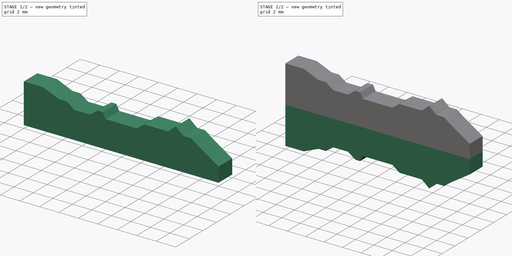
[diagram: build sequence overview — one tinted view per stage of 2, left to right]
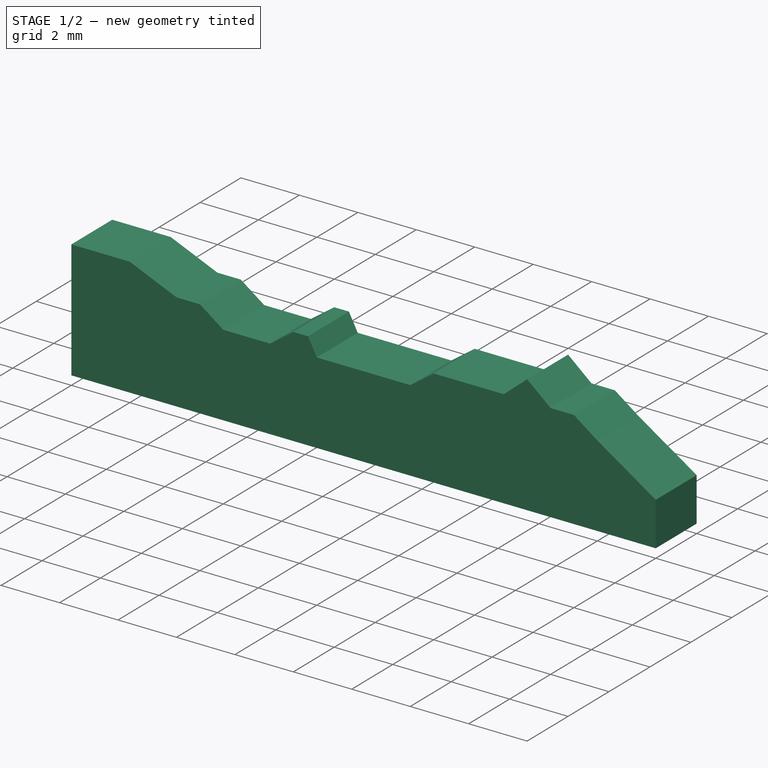
[diagram: stage 1 of 2 — iso view after this stage's code; geometry added in this stage tinted green]
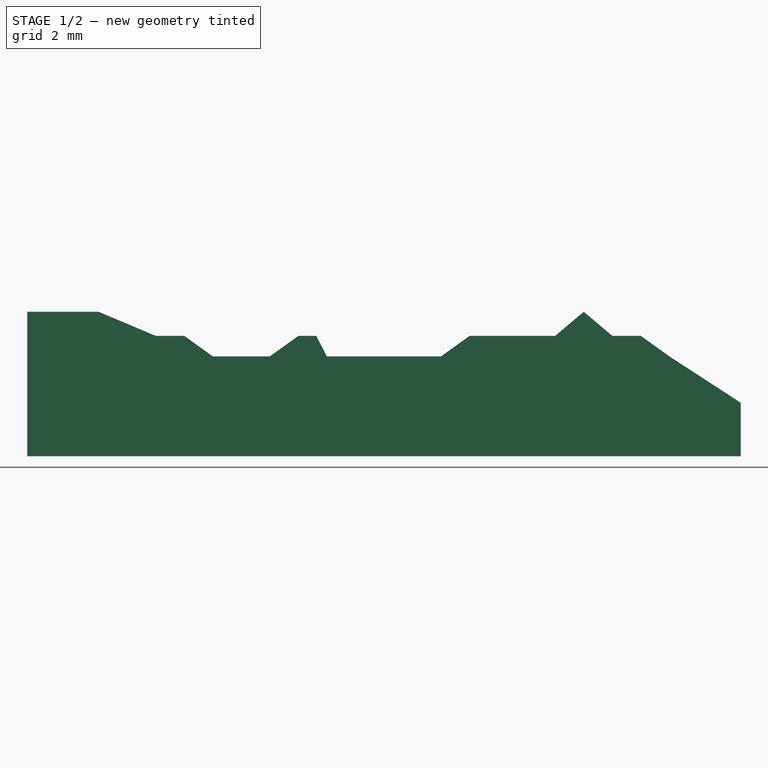
[diagram: stage 1 of 2 — front view after this stage's code; geometry added in this stage tinted green]
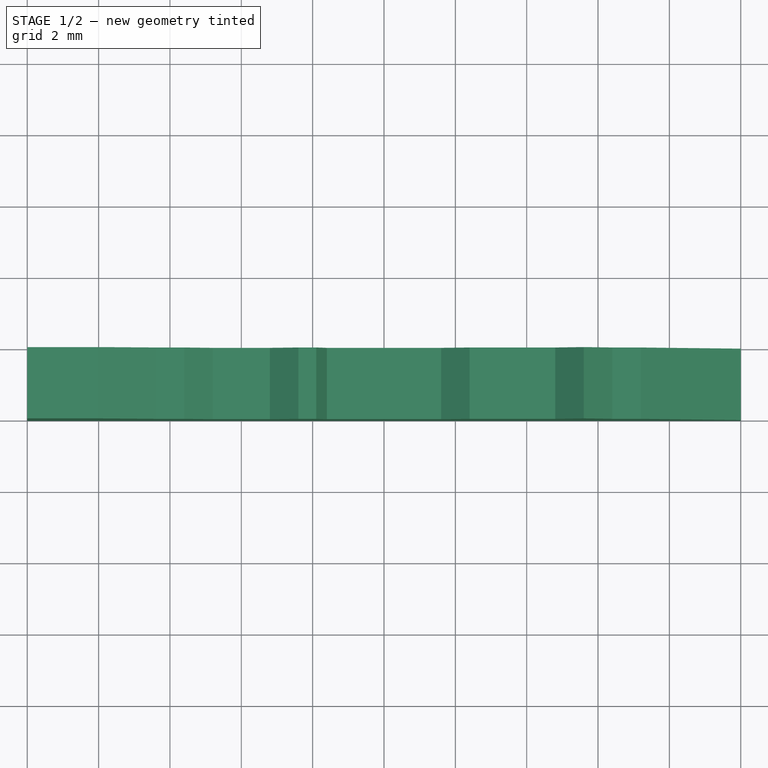
[diagram: stage 1 of 2 — top view after this stage's code; geometry added in this stage tinted green]
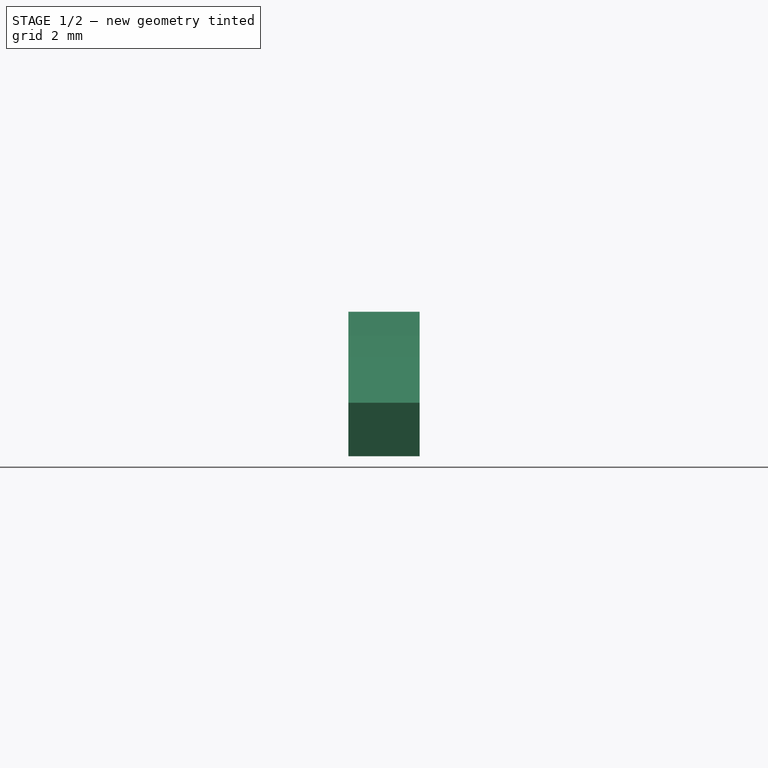
[diagram: stage 1 of 2 — right view after this stage's code; geometry added in this stage tinted green]
FCSTD DOCUMENT  (FreeCAD 0.19R24276 (Git))
Label: tacoma_key
License: All rights reserved
LicenseURL: http://en.wikipedia.org/wiki/All_rights_reserved
objects: Sketcher::SketchObject×1, Spreadsheet::Sheet×1, PartDesign::Pad×1, PartDesign::Mirrored×1, PartDesign::Body×1
note: 5 computed .brp shape members not serialized (recipe doc carries the construction recipe); baked Part::Feature solids carry a one-line shape summary decoded from their .brp

FEATURE [Sketcher::SketchObject] Sketch
  FullyConstrained = true
  MapMode = 5
  Placement = pos=(0,0,0) rot=(1,0,0;1.5708rad)
  Support = -> [XZ_Plane]
  expr: Constraints[64] = <<key dims>>.section_width
  expr: Constraints[62] = <<key dims>>.section_width
  expr: Constraints[61] = <<key dims>>.section_width
  expr: Constraints[60] = <<key dims>>.section_width
  expr: Constraints[142] = <<key dims>>.third_cut_depth
  expr: Constraints[136] = <<key dims>>.section_width
  expr: Constraints[93] = 0.5
  expr: Constraints[72] = <<key dims>>.second_cut_depth
  expr: Constraints[57] = <<key dims>>.section_width
  expr: Constraints[10] = <<key dims>>.stock_area
  expr: Constraints[2] = <<key dims>>.stock_width
  expr: Constraints[59] = <<key dims>>.section_width
  expr: Constraints[63] = <<key dims>>.section_width
  expr: Constraints[58] = <<key dims>>.section_width
  expr: Constraints[71] = <<key dims>>.first_cut_depth
  expr: Constraints[56] = <<key dims>>.section_width
  sketch-geometry (50):
    g0: LineSegment StartX=20 StartY=0 StartZ=0 EndX=20 EndY=8.1 EndZ=0
    g1: LineSegment StartX=0 StartY=8.1 StartZ=0 EndX=0 EndY=0 EndZ=0
    g2: LineSegment StartX=20 StartY=0 StartZ=0 EndX=0 EndY=0 EndZ=0
    g3: LineSegment StartX=0 StartY=8.1 StartZ=0 EndX=20 EndY=8.1 EndZ=0
    g4: LineSegment StartX=2 StartY=8.1 StartZ=0 EndX=18 EndY=8.1 EndZ=0
    g5: LineSegment StartX=18 StartY=8.1 StartZ=0 EndX=18 EndY=0 EndZ=0
    g6: LineSegment StartX=18 StartY=0 StartZ=0 EndX=2 EndY=0 EndZ=0
    g7: LineSegment StartX=2 StartY=0 StartZ=0 EndX=2 EndY=8.1 EndZ=0
    g8: LineSegment StartX=0 StartY=4.05 StartZ=0 EndX=20 EndY=4.05 EndZ=0
    g9: LineSegment StartX=3.6 StartY=8.1 StartZ=0 EndX=3.6 EndY=0 EndZ=0
    g10: LineSegment StartX=5.2 StartY=8.1 StartZ=0 EndX=5.2 EndY=0 EndZ=0
    g11: LineSegment StartX=6.8 StartY=8.1 StartZ=0 EndX=6.8 EndY=0 EndZ=0
    g12: LineSegment StartX=8.4 StartY=8.1 StartZ=0 EndX=8.4 EndY=0 EndZ=0
    g13: LineSegment StartX=10 StartY=8.1 StartZ=0 EndX=10 EndY=0 EndZ=0
    g14: LineSegment StartX=11.6 StartY=8.1 StartZ=0 EndX=11.6 EndY=0 EndZ=0
    g15: LineSegment StartX=13.2 StartY=8.1 StartZ=0 EndX=13.2 EndY=0 EndZ=0
    g16: LineSegment StartX=14.8 StartY=8.1 StartZ=0 EndX=14.8 EndY=0 EndZ=0
    g17: LineSegment StartX=16.4 StartY=8.1 StartZ=0 EndX=16.4 EndY=0 EndZ=0
    g18: LineSegment StartX=2 StartY=8.1 StartZ=0 EndX=3.6 EndY=8.1 EndZ=0
    g19: LineSegment StartX=3.6 StartY=8.1 StartZ=0 EndX=5.2 EndY=8.1 EndZ=0
    g20: LineSegment StartX=0 StartY=7.425 StartZ=0 EndX=20 EndY=7.425 EndZ=0
    g21: LineSegment StartX=0 StartY=6.85 StartZ=0 EndX=20 EndY=6.85 EndZ=0
    g22: LineSegment StartX=2 StartY=8.1 StartZ=0 EndX=3.6 EndY=7.425 EndZ=0
    g23: LineSegment StartX=4.4 StartY=8.1 StartZ=0 EndX=4.4 EndY=0 EndZ=0
    g24: LineSegment StartX=3.6 StartY=7.425 StartZ=0 EndX=4.4 EndY=7.425 EndZ=0
    g25: LineSegment StartX=4.4 StartY=7.425 StartZ=0 EndX=5.2 EndY=6.85 EndZ=0
    g26: LineSegment StartX=5.2 StartY=6.85 StartZ=0 EndX=6.8 EndY=6.85 EndZ=0
    g27: LineSegment StartX=7.6 StartY=8.1 StartZ=0 EndX=7.6 EndY=0 EndZ=0
    g28: LineSegment StartX=8.1 StartY=8.1 StartZ=0 EndX=8.1 EndY=0 EndZ=0
    g29: LineSegment StartX=6.8 StartY=6.85 StartZ=0 EndX=7.6 EndY=7.425 EndZ=0
    g30: LineSegment StartX=7.6 StartY=7.425 StartZ=0 EndX=8.1 EndY=7.425 EndZ=0
    g31: LineSegment StartX=8.1 StartY=7.425 StartZ=0 EndX=8.4 EndY=6.85 EndZ=0
    g32: LineSegment StartX=10 StartY=6.85 StartZ=0 EndX=8.4 EndY=6.85 EndZ=0
    g33: LineSegment StartX=10 StartY=6.85 StartZ=0 EndX=11.6 EndY=6.85 EndZ=0
    g34: LineSegment StartX=12.4 StartY=8.1 StartZ=0 EndX=12.4 EndY=0 EndZ=0
    g35: LineSegment StartX=11.6 StartY=6.85 StartZ=0 EndX=12.4 EndY=7.425 EndZ=0
    g36: LineSegment StartX=12.4 StartY=7.425 StartZ=0 EndX=13.2 EndY=7.425 EndZ=0
    g37: LineSegment StartX=13.2 StartY=7.425 StartZ=0 EndX=14.8 EndY=7.425 EndZ=0
    g38: LineSegment StartX=15.6 StartY=8.1 StartZ=0 EndX=15.6 EndY=0 EndZ=0
    g39: LineSegment StartX=14.8 StartY=7.425 StartZ=0 EndX=15.6 EndY=8.1 EndZ=0
    g40: LineSegment StartX=15.6 StartY=8.1 StartZ=0 EndX=16.4 EndY=7.425 EndZ=0
    g41: LineSegment StartX=17.2 StartY=8.1 StartZ=0 EndX=17.2 EndY=0 EndZ=0
    g42: LineSegment StartX=16.4 StartY=7.425 StartZ=0 EndX=17.2 EndY=7.425 EndZ=0
    g43: LineSegment StartX=17.2 StartY=7.425 StartZ=0 EndX=18 EndY=6.85 EndZ=0
    g44: LineSegment StartX=0 StartY=5.55 StartZ=0 EndX=20 EndY=5.55 EndZ=0
    g45: LineSegment StartX=18 StartY=6.85 StartZ=0 EndX=20 EndY=5.55 EndZ=0
    g46: LineSegment StartX=20 StartY=5.55 StartZ=0 EndX=20 EndY=4.05 EndZ=0
    g47: LineSegment StartX=2 StartY=8.1 StartZ=0 EndX=0 EndY=8.1 EndZ=0
    g48: LineSegment StartX=0 StartY=8.1 StartZ=0 EndX=0 EndY=4.05 EndZ=0
    g49: LineSegment StartX=0 StartY=4.05 StartZ=0 EndX=20 EndY=4.05 EndZ=0
  constraints (155):
    c: Vertical(g0)
    c: Vertical(g1)
    c: Distance(g0) = 8.1
    c: Horizontal(g2)
    c: Coincident(g2,g1)
    c: Coincident(g1,g-1)
    c: Coincident(g0,g2)
    c: Coincident(g3,g1)
    c: Coincident(g3,g0)
    c: Horizontal(g3)
    c: Distance(g3) = 20
    c: Coincident(g4,g5)
    c: Coincident(g5,g6)
    c: Coincident(g6,g7)
    c: Coincident(g7,g4)
    c: Horizontal(g4)
    c: Horizontal(g6)
    c: Vertical(g5)
    c: Vertical(g7)
    c: PointOnObject(g4,g3)
    c: PointOnObject(g5,g2)
    c: DistanceX(g4,g4) = 16
    c: PointOnObject(g8,g0)
    c: Horizontal(g8)
    c: Symmetric(g1,g-1,g8)
    c: PointOnObject(g9,g3)
    c: PointOnObject(g9,g2)
    c: Vertical(g9)
    c: PointOnObject(g10,g3)
    c: PointOnObject(g10,g2)
    c: Vertical(g10)
    c: PointOnObject(g11,g3)
    c: PointOnObject(g11,g2)
    c: Vertical(g11)
    c: PointOnObject(g12,g3)
    c: PointOnObject(g12,g2)
    c: Vertical(g12)
    c: PointOnObject(g13,g3)
    c: PointOnObject(g13,g2)
    c: Vertical(g13)
    c: PointOnObject(g14,g3)
    c: PointOnObject(g14,g2)
    c: Vertical(g14)
    c: PointOnObject(g15,g3)
    c: PointOnObject(g15,g2)
    c: Vertical(g15)
    c: PointOnObject(g16,g3)
    c: PointOnObject(g16,g2)
    c: Vertical(g16)
    c: PointOnObject(g17,g3)
    c: PointOnObject(g17,g2)
    c: Vertical(g17)
    c: Coincident(g18,g4)
    c: Coincident(g18,g9)
    c: Coincident(g19,g9)
    c: Coincident(g19,g10)
    c: Distance(g4,g9) = 1.6
    c: Distance(g9,g10) = 1.6
    c: Distance(g10,g11) = 1.6
    c: Distance(g11,g12) = 1.6
    c: Distance(g12,g13) = 1.6
    c: Distance(g13,g14) = 1.6
    c: Distance(g14,g15) = 1.6
    c: Distance(g15,g16) = 1.6
    c: Distance(g17,g4) = 1.6
    c: PointOnObject(g20,g1)
    c: PointOnObject(g20,g0)
    c: Horizontal(g20)
    c: PointOnObject(g21,g1)
    c: PointOnObject(g21,g0)
    c: Horizontal(g21)
    c: DistanceY(g20,g0) = 0.675
    c: DistanceY(g21,g0) = 1.25
    c: Coincident(g22,g4)
    c: PointOnObject(g22,g9)
    c: PointOnObject(g22,g20)
    c: PointOnObject(g23,g3)
    c: Vertical(g23)
    c: Symmetric(g9,g10,g23)
    c: Coincident(g24,g22)
    c: PointOnObject(g24,g20)
    c: PointOnObject(g24,g23)
    c: Coincident(g25,g24)
    c: PointOnObject(g25,g21)
    c: PointOnObject(g25,g10)
    c: Coincident(g26,g25)
    c: PointOnObject(g26,g11)
    c: PointOnObject(g26,g21)
    c: PointOnObject(g27,g3)
    c: Vertical(g27)
    c: Symmetric(g11,g12,g27)
    c: PointOnObject(g28,g3)
    c: Vertical(g28)
    c: Distance(g28,g27) = 0.5
    c: Coincident(g29,g26)
    c: PointOnObject(g29,g27)
    c: Coincident(g30,g29)
    c: PointOnObject(g30,g28)
    c: Coincident(g31,g30)
    c: PointOnObject(g31,g12)
    c: PointOnObject(g30,g20)
    c: PointOnObject(g29,g20)
    c: PointOnObject(g32,g21)
    c: Coincident(g32,g31)
    c: PointOnObject(g31,g21)
    c: PointOnObject(g32,g13)
    c: Coincident(g33,g32)
    c: PointOnObject(g33,g14)
    c: PointOnObject(g33,g21)
    c: PointOnObject(g34,g3)
    c: Vertical(g34)
    c: Symmetric(g14,g15,g34)
    c: Coincident(g35,g33)
    c: PointOnObject(g35,g34)
    c: PointOnObject(g35,g20)
    c: Coincident(g36,g35)
    c: PointOnObject(g36,g20)
    c: PointOnObject(g36,g15)
    c: Coincident(g37,g36)
    c: PointOnObject(g37,g16)
    c: PointOnObject(g37,g20)
    c: PointOnObject(g38,g2)
    c: Vertical(g38)
    c: Coincident(g39,g37)
    c: Coincident(g39,g38)
    c: Coincident(g40,g39)
    c: PointOnObject(g40,g20)
    c: PointOnObject(g40,g17)
    c: Symmetric(g16,g17,g39)
    c: PointOnObject(g41,g2)
    c: Vertical(g41)
    c: Symmetric(g17,g4,g41)
    c: Coincident(g42,g40)
    c: PointOnObject(g42,g41)
    c: Coincident(g43,g42)
    c: PointOnObject(g43,g5)
    c: Distance(g16,g17) = 1.6
    c: PointOnObject(g42,g20)
    c: PointOnObject(g43,g21)
    c: PointOnObject(g44,g1)
    c: PointOnObject(g44,g0)
    c: Horizontal(g44)
    c: DistanceY(g44,g0) = 2.55
    c: Coincident(g45,g43)
    c: Coincident(g45,g44)
    c: Coincident(g46,g45)
    c: Coincident(g46,g8)
    c: Distance(g4,g0) = 2
    c: Coincident(g47,g22)
    c: Coincident(g47,g1)
    c: Coincident(g48,g47)
    c: Coincident(g48,g8)
    c: PointOnObject(g28,g2)
    c: Coincident(g49,g48)
    c: Coincident(g49,g46)
FEATURE [Spreadsheet::Sheet] Spreadsheet  label="key dims"
  cells = A1=cut area; B1(cut_area)=16; A2=stock area; B2(stock_area)=20; A3=stock width; B3(stock_width)=8.1; A4=stock width first cut; B4(stock_width_first_cut)=6.75; A5=stock width second cut; B5(stock_width_second_cut)=5.6; A6=stock width third cut; B6(stock_width_third_cut)=3; A7=first cut depth; B7(first_cut_depth)==(stock_width - stock_width_first_cut) / 2; A8=second cut depth; B8(second_cut_depth)==(stock_width - stock_width_second_cut) / 2; A9=third cut depth; B9(third_cut_depth)==(stock_width - stock_width_third_cut) / 2; A10=section width; B10(section_width)=1.6; A12=key thickness; B12(key_thickness)=2
FEATURE [PartDesign::Pad] Pad
  Direction = (1,1,1)
  Length = 2
  Length2 = 100
  Placement = pos=(0,0,0) rot=(1,0,0;1.5708rad)
  Profile = -> Sketch
  Type = 0
  expr: Length = <<key dims>>.key_thickness
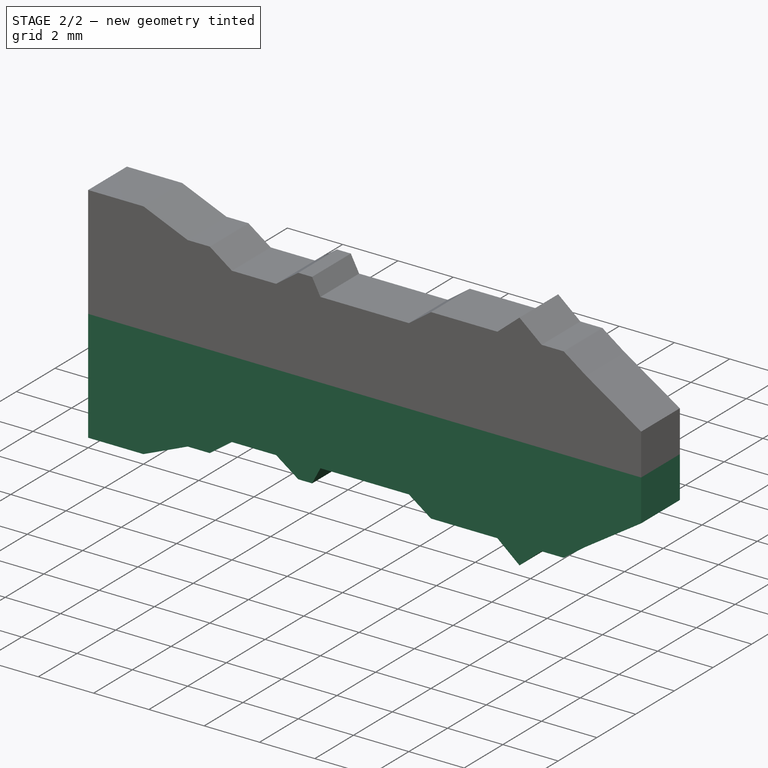
[diagram: stage 2 of 2 — iso view after this stage's code; geometry added in this stage tinted green]
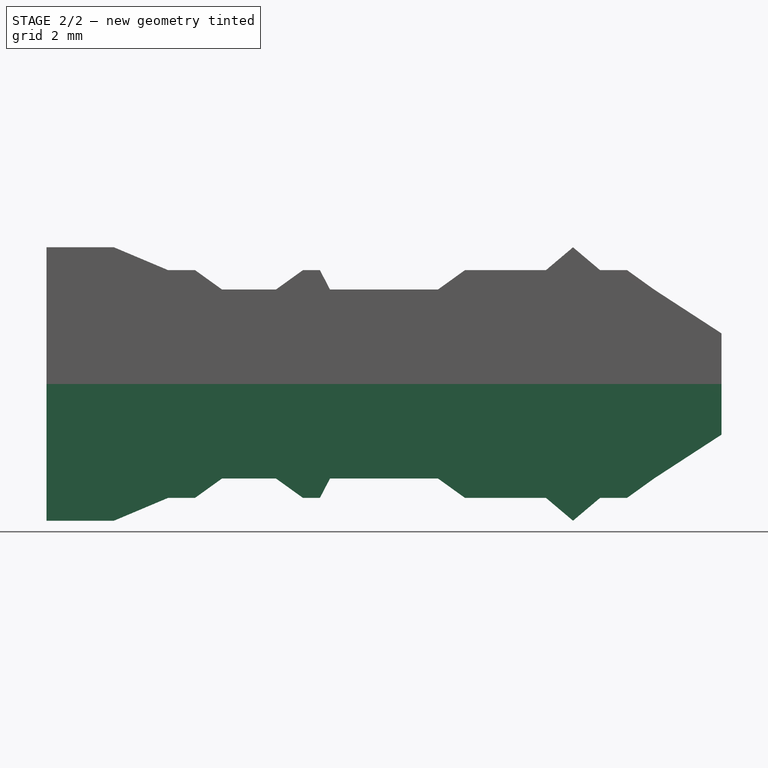
[diagram: stage 2 of 2 — front view after this stage's code; geometry added in this stage tinted green]
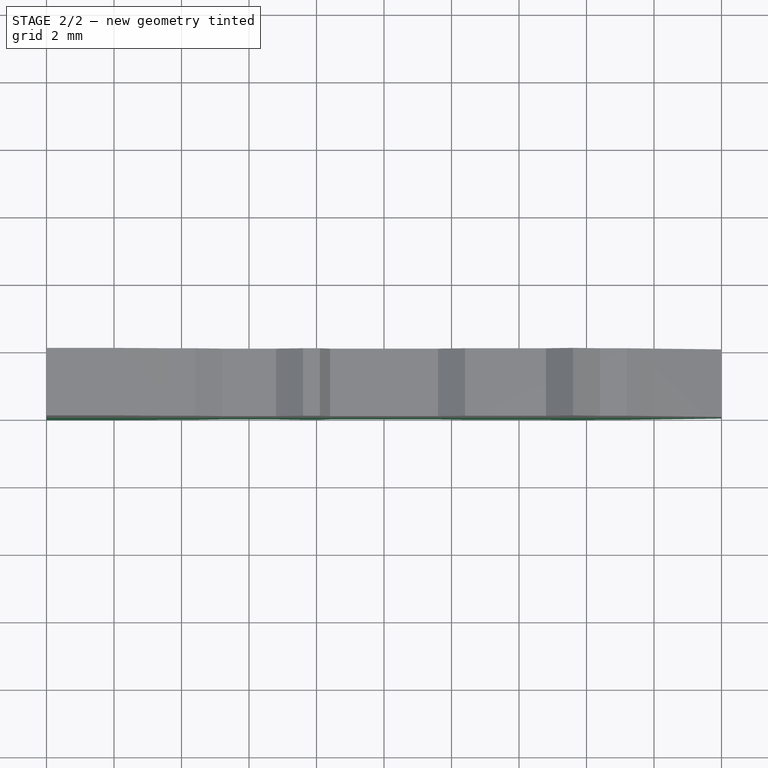
[diagram: stage 2 of 2 — top view after this stage's code; geometry added in this stage tinted green]
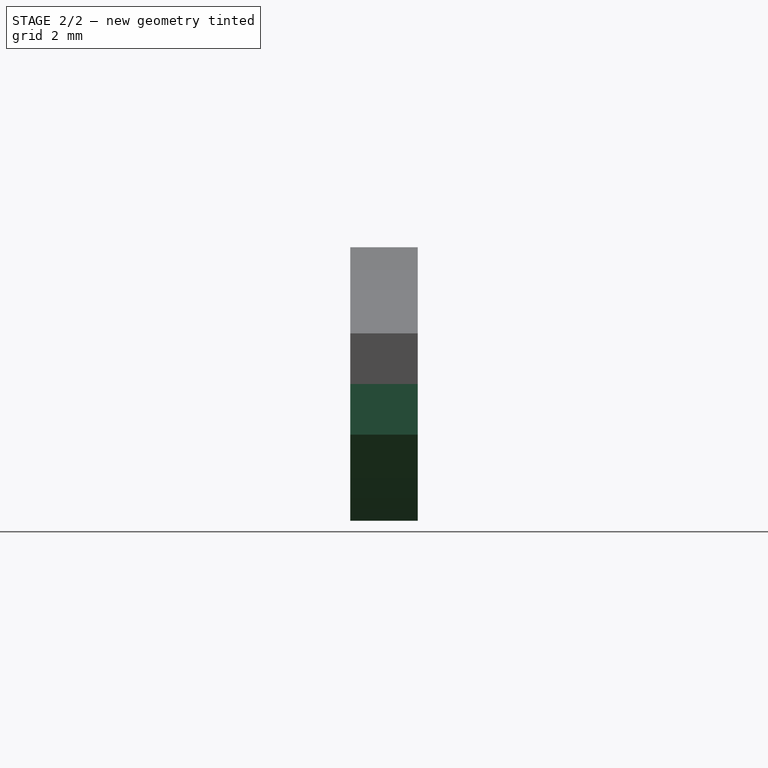
[diagram: stage 2 of 2 — right view after this stage's code; geometry added in this stage tinted green]
FEATURE [PartDesign::Mirrored] Mirrored
  BaseFeature = -> Pad
  MirrorPlane = -> Sketch [Axis8]
  Originals = -> [Pad]
  Placement = pos=(0,0,0) rot=(1,0,0;1.5708rad)
FEATURE [PartDesign::Body] Body
  Group = -> [Sketch,Pad,Mirrored]
  Origin = -> Origin
  Tip = -> Mirrored
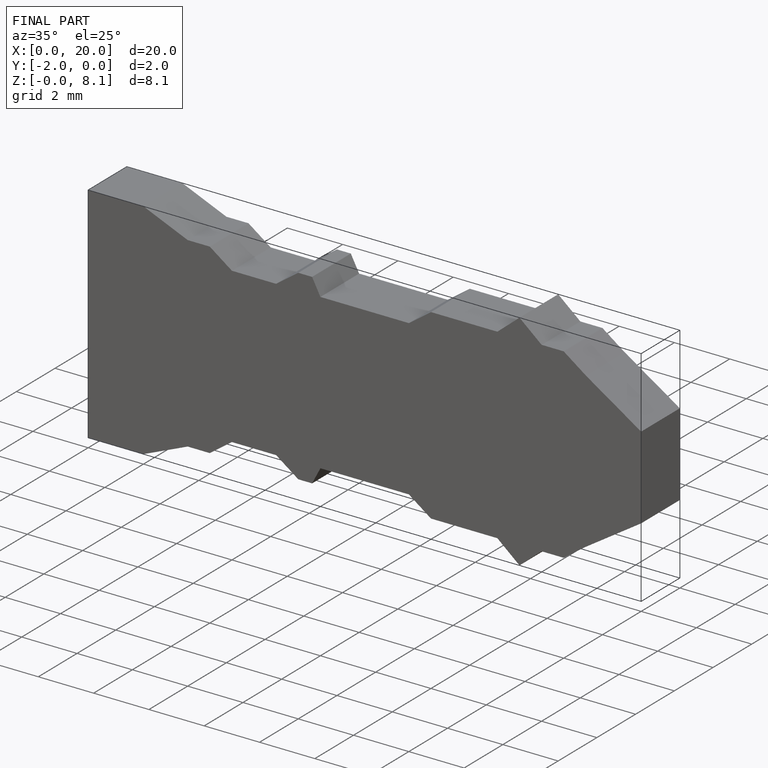
[diagram: finished part — iso view with bounding-box wireframe]
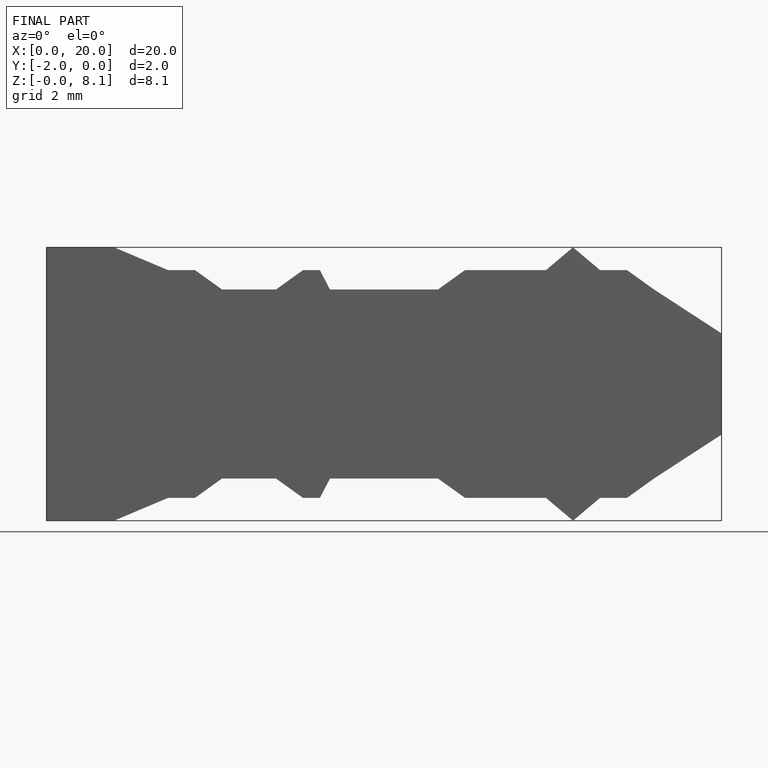
[diagram: finished part — front view with bounding-box wireframe]
